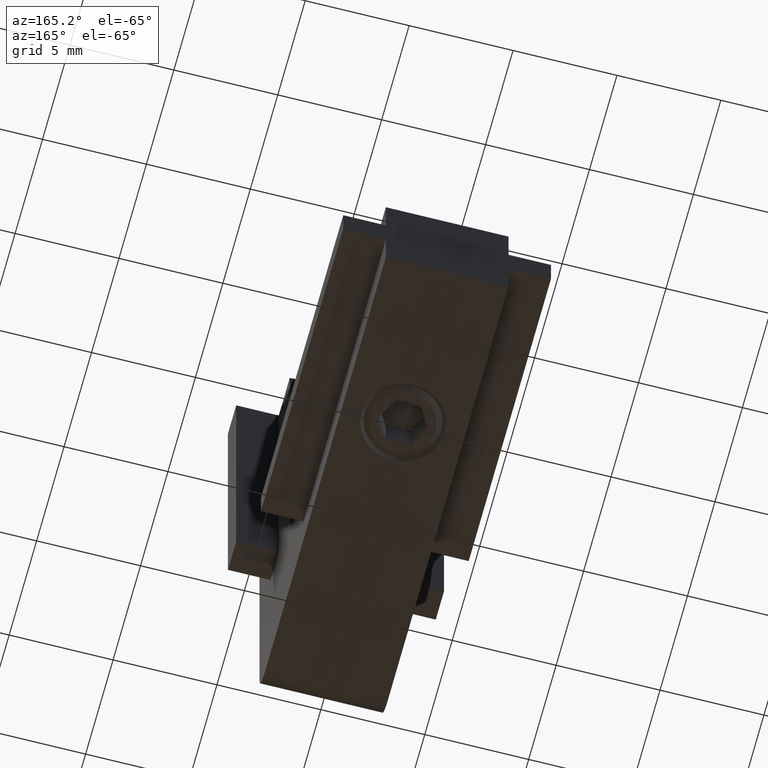
[diagram: clean part render]
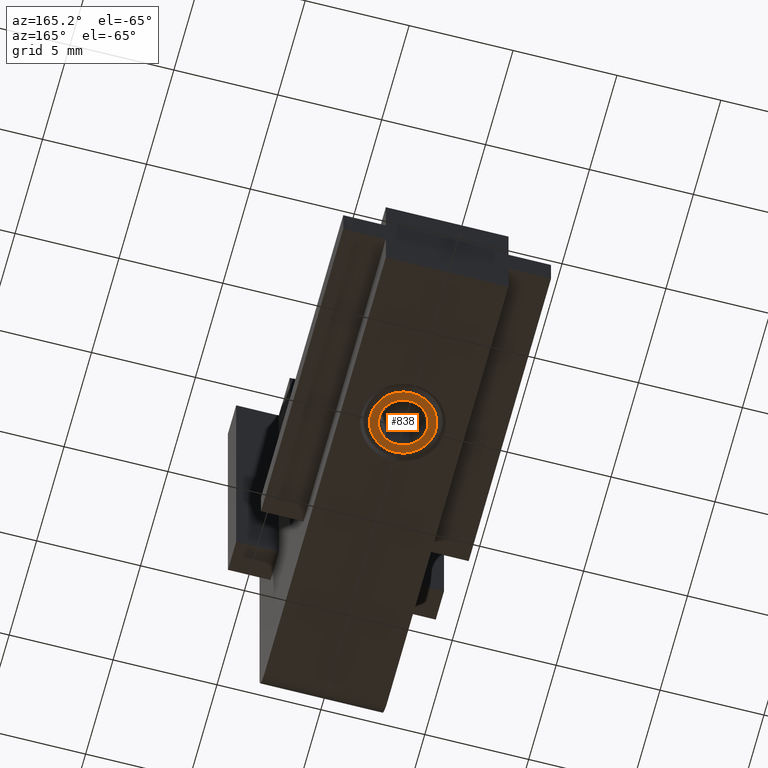
[diagram: same view with one face highlighted and labeled with its STEP entity id]
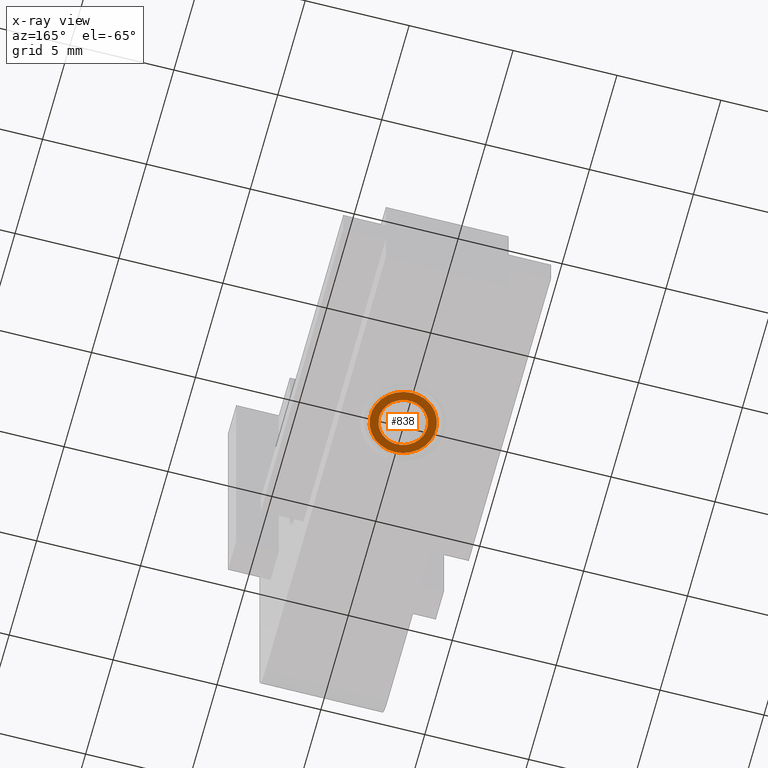
[diagram: x-ray of the same camera — body ghosted, the highlighted face saturated]
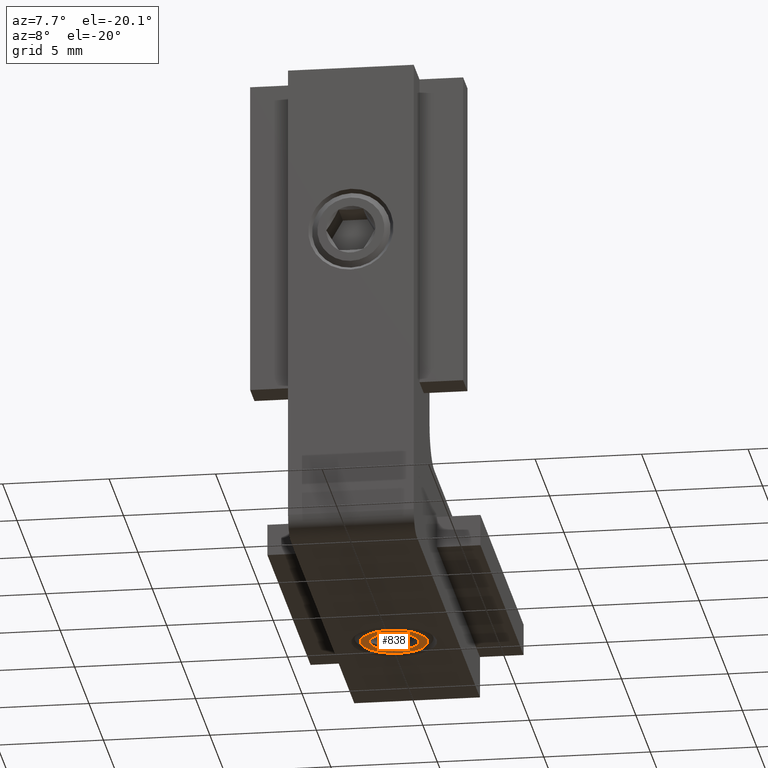
[diagram: same view with one face highlighted and labeled with its STEP entity id]
A machine part, auxiliary view. The second image highlights one B-rep face of the part: STEP entity #838.
The next image is the same camera in x-ray: the body ghosted, the highlighted face saturated — about 0% of this face is hidden behind the body in this view.
A second angle (auxiliary view) of the same face is appended — the face is thin or edge-on in the first view.
In plain terms, the highlighted planar face has unit normal (0, 0, 1).
Its self-contained STEP definition (entity closure, byte-faithful):
#396=ORIENTED_EDGE('',*,*,#518,.F.);
#397=ORIENTED_EDGE('',*,*,#520,.F.);
#398=ORIENTED_EDGE('',*,*,#522,.F.);
#399=ORIENTED_EDGE('',*,*,#524,.F.);
#400=ORIENTED_EDGE('',*,*,#516,.F.);
#401=ORIENTED_EDGE('',*,*,#514,.F.);
#402=ORIENTED_EDGE('',*,*,#528,.T.);
#514=EDGE_CURVE('',#597,#598,#625,.T.);
#516=EDGE_CURVE('',#598,#599,#626,.T.);
#518=EDGE_CURVE('',#600,#597,#627,.T.);
#520=EDGE_CURVE('',#601,#600,#628,.T.);
#522=EDGE_CURVE('',#602,#601,#629,.T.);
#524=EDGE_CURVE('',#599,#602,#630,.T.);
#528=EDGE_CURVE('',#606,#606,#634,.T.);
#597=VERTEX_POINT('',#1354);
#598=VERTEX_POINT('',#1355);
#599=VERTEX_POINT('',#1362);
#600=VERTEX_POINT('',#1369);
#601=VERTEX_POINT('',#1376);
#602=VERTEX_POINT('',#1383);
#606=VERTEX_POINT('',#1402);
#625=CIRCLE('',#918,1.15470053837925);
#626=CIRCLE('',#920,1.15470053837925);
#627=CIRCLE('',#922,1.15470053837925);
#628=CIRCLE('',#924,1.15470053837925);
#629=CIRCLE('',#926,1.15470053837925);
#630=CIRCLE('',#928,1.15470053837925);
#634=CIRCLE('',#936,1.5705);
#690=EDGE_LOOP('',(#396,#397,#398,#399,#400,#401));
#691=EDGE_LOOP('',(#402));
#754=FACE_BOUND('',#690,.T.);
#755=FACE_BOUND('',#691,.T.);
#788=PLANE('',#937);
#838=ADVANCED_FACE('',(#754,#755),#788,.F.);
#918=AXIS2_PLACEMENT_3D('',#1356,#1109,#1110);
#920=AXIS2_PLACEMENT_3D('',#1363,#1113,#1114);
#922=AXIS2_PLACEMENT_3D('',#1370,#1117,#1118);
#924=AXIS2_PLACEMENT_3D('',#1377,#1121,#1122);
#926=AXIS2_PLACEMENT_3D('',#1384,#1125,#1126);
#928=AXIS2_PLACEMENT_3D('',#1390,#1129,#1130);
#936=AXIS2_PLACEMENT_3D('',#1401,#1145,#1146);
#937=AXIS2_PLACEMENT_3D('',#1403,#1147,#1148);
#1109=DIRECTION('',(-1.,-6.12323399573677E-17,0.));
#1110=DIRECTION('',(6.12323399573677E-17,-1.,0.));
#1113=DIRECTION('',(-1.,-6.12323399573677E-17,0.));
#1114=DIRECTION('',(6.12323399573677E-17,-1.,0.));
#1117=DIRECTION('',(-1.,-6.12323399573677E-17,0.));
#1118=DIRECTION('',(6.12323399573677E-17,-1.,0.));
#1121=DIRECTION('',(-1.,-6.12323399573677E-17,0.));
#1122=DIRECTION('',(6.12323399573677E-17,-1.,0.));
#1125=DIRECTION('',(-1.,-6.12323399573677E-17,0.));
#1126=DIRECTION('',(6.12323399573677E-17,-1.,0.));
#1129=DIRECTION('',(-1.,-6.12323399573677E-17,0.));
#1130=DIRECTION('',(6.12323399573677E-17,-1.,0.));
#1145=DIRECTION('',(-1.,-6.12323399573677E-17,0.));
#1146=DIRECTION('',(6.12323399573677E-17,-1.,0.));
#1147=DIRECTION('',(1.,6.12323399573677E-17,0.));
#1148=DIRECTION('',(-6.12323399573677E-17,1.,0.));
#1354=CARTESIAN_POINT('',(0.,-1.,0.577350269189626));
#1355=CARTESIAN_POINT('',(0.,0.,1.15470053837925));
#1356=CARTESIAN_POINT('',(0.,0.,0.));
#1362=CARTESIAN_POINT('',(-6.12323399573677E-17,1.,0.577350269189626));
#1363=CARTESIAN_POINT('',(0.,0.,0.));
#1369=CARTESIAN_POINT('',(0.,-1.,-0.577350269189626));
#1370=CARTESIAN_POINT('',(0.,0.,0.));
#1376=CARTESIAN_POINT('',(0.,0.,-1.15470053837925));
#1377=CARTESIAN_POINT('',(0.,0.,0.));
#1383=CARTESIAN_POINT('',(0.,1.,-0.577350269189626));
#1384=CARTESIAN_POINT('',(0.,0.,0.));
#1390=CARTESIAN_POINT('',(0.,0.,0.));
#1401=CARTESIAN_POINT('',(0.,0.,0.));
#1402=CARTESIAN_POINT('',(9.61653899030459E-17,-1.5705,0.));
#1403=CARTESIAN_POINT('',(1.02292803575798E-16,-1.5705,0.));